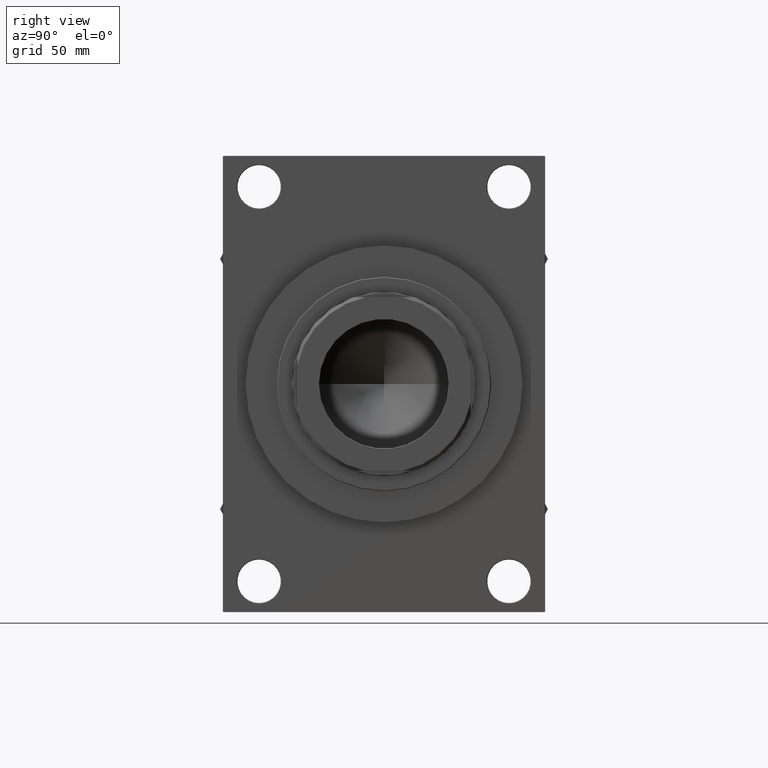
[diagram: clean part render]
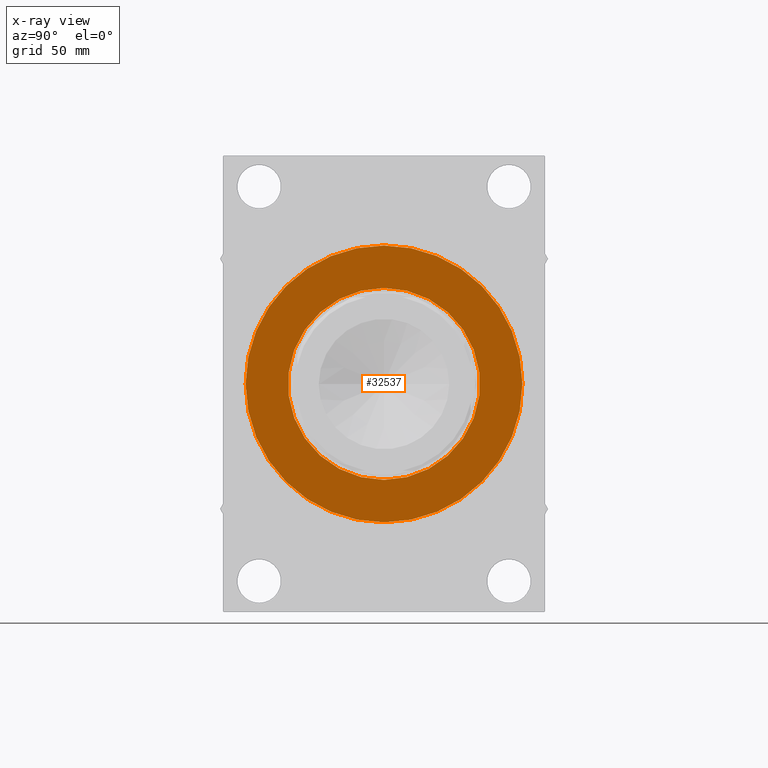
[diagram: x-ray — body ghosted, one internal face saturated and labeled with its STEP entity id]
A machine part, right view, then the same camera in x-ray: the body is ghosted and one INTERNAL B-rep face — a face not visible from any outside direction — is saturated and labeled: STEP entity #32537.
In plain terms, the highlighted planar face has unit normal (1, 0, 0).
Its self-contained STEP definition (entity closure, byte-faithful):
#543 = CARTESIAN_POINT ( 'NONE',  ( 245.7400000000000375, 0.000000000000000000, -73.00000000000000000 ) ) ;
#910 = DIRECTION ( 'NONE',  ( 0.000000000000000000, 0.000000000000000000, -1.000000000000000000 ) ) ;
#1613 = EDGE_LOOP ( 'NONE', ( #5132, #33515 ) ) ;
#1784 = DIRECTION ( 'NONE',  ( 0.000000000000000000, 0.000000000000000000, -1.000000000000000000 ) ) ;
#2879 = CARTESIAN_POINT ( 'NONE',  ( 245.7400000000000375, 8.939921633775676859E-15, 73.00000000000000000 ) ) ;
#3521 = CARTESIAN_POINT ( 'NONE',  ( 245.7400000000000375, 0.000000000000000000, 0.000000000000000000 ) ) ;
#5132 = ORIENTED_EDGE ( 'NONE', *, *, #37029, .T. ) ;
#6750 = CARTESIAN_POINT ( 'NONE',  ( 245.7400000000000375, 1.288940756102589170E-14, 105.2500000000000000 ) ) ;
#7208 = PLANE ( 'NONE',  #29493 ) ;
#8084 = CARTESIAN_POINT ( 'NONE',  ( 245.7400000000000375, 0.000000000000000000, 0.000000000000000000 ) ) ;
#10864 = EDGE_LOOP ( 'NONE', ( #16974, #21943 ) ) ;
#11084 = DIRECTION ( 'NONE',  ( 0.000000000000000000, 0.000000000000000000, -1.000000000000000000 ) ) ;
#14325 = CIRCLE ( 'NONE', #46728, 73.00000000000000000 ) ;
#15573 = DIRECTION ( 'NONE',  ( 1.000000000000000000, 0.000000000000000000, 0.000000000000000000 ) ) ;
#16974 = ORIENTED_EDGE ( 'NONE', *, *, #43188, .F. ) ;
#18358 = VERTEX_POINT ( 'NONE', #6750 ) ;
#20412 = AXIS2_PLACEMENT_3D ( 'NONE', #8084, #15573, #1784 ) ;
#21925 = CIRCLE ( 'NONE', #35080, 105.2500000000000000 ) ;
#21943 = ORIENTED_EDGE ( 'NONE', *, *, #41225, .F. ) ;
#25064 = DIRECTION ( 'NONE',  ( 1.000000000000000000, 0.000000000000000000, 0.000000000000000000 ) ) ;
#25611 = FACE_OUTER_BOUND ( 'NONE', #1613, .T. ) ;
#25650 = CARTESIAN_POINT ( 'NONE',  ( 245.7400000000000375, 0.000000000000000000, -105.2500000000000000 ) ) ;
#26830 = CIRCLE ( 'NONE', #44539, 105.2500000000000000 ) ;
#27383 = CIRCLE ( 'NONE', #20412, 73.00000000000000000 ) ;
#29473 = CARTESIAN_POINT ( 'NONE',  ( 245.7400000000000375, 0.000000000000000000, 0.000000000000000000 ) ) ;
#29493 = AXIS2_PLACEMENT_3D ( 'NONE', #29473, #44199, #11084 ) ;
#29700 = CARTESIAN_POINT ( 'NONE',  ( 245.7400000000000375, 0.000000000000000000, 0.000000000000000000 ) ) ;
#29967 = CARTESIAN_POINT ( 'NONE',  ( 245.7400000000000375, 0.000000000000000000, 0.000000000000000000 ) ) ;
#31857 = DIRECTION ( 'NONE',  ( 0.000000000000000000, 0.000000000000000000, -1.000000000000000000 ) ) ;
#32537 = ADVANCED_FACE ( 'NONE', ( #32625, #25611 ), #7208, .T. ) ;
#32625 = FACE_BOUND ( 'NONE', #10864, .T. ) ;
#33515 = ORIENTED_EDGE ( 'NONE', *, *, #47405, .T. ) ;
#35080 = AXIS2_PLACEMENT_3D ( 'NONE', #3521, #25064, #31857 ) ;
#37029 = EDGE_CURVE ( 'NONE', #44651, #18358, #21925, .T. ) ;
#41033 = DIRECTION ( 'NONE',  ( 1.000000000000000000, 0.000000000000000000, 0.000000000000000000 ) ) ;
#41225 = EDGE_CURVE ( 'NONE', #43142, #41603, #27383, .T. ) ;
#41303 = DIRECTION ( 'NONE',  ( 1.000000000000000000, 0.000000000000000000, 0.000000000000000000 ) ) ;
#41603 = VERTEX_POINT ( 'NONE', #543 ) ;
#43142 = VERTEX_POINT ( 'NONE', #2879 ) ;
#43188 = EDGE_CURVE ( 'NONE', #41603, #43142, #14325, .T. ) ;
#44199 = DIRECTION ( 'NONE',  ( 1.000000000000000000, 0.000000000000000000, 0.000000000000000000 ) ) ;
#44539 = AXIS2_PLACEMENT_3D ( 'NONE', #29967, #41303, #45643 ) ;
#44651 = VERTEX_POINT ( 'NONE', #25650 ) ;
#45643 = DIRECTION ( 'NONE',  ( 0.000000000000000000, 0.000000000000000000, -1.000000000000000000 ) ) ;
#46728 = AXIS2_PLACEMENT_3D ( 'NONE', #29700, #41033, #910 ) ;
#47405 = EDGE_CURVE ( 'NONE', #18358, #44651, #26830, .T. ) ;